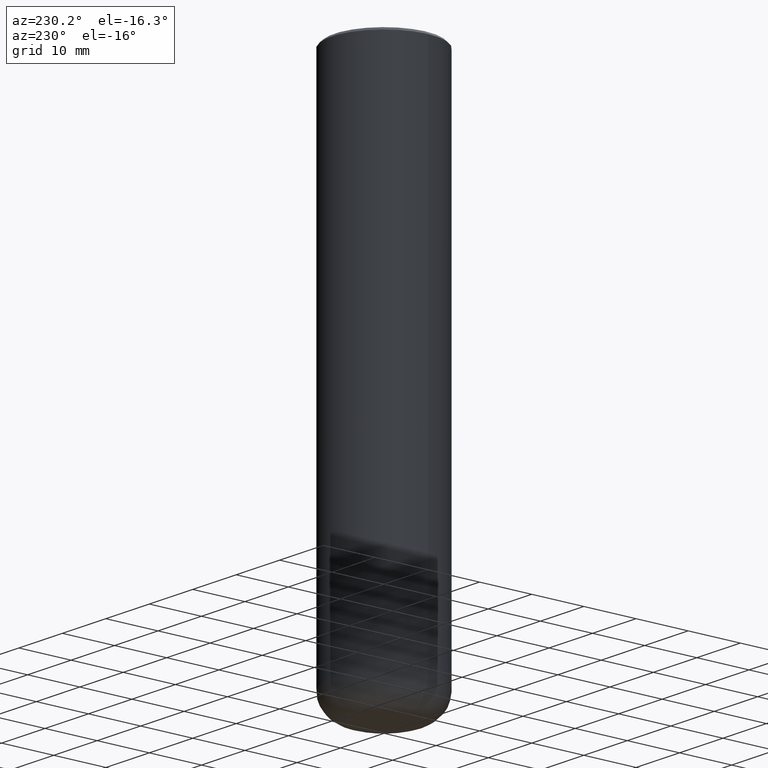
[diagram: clean part render]
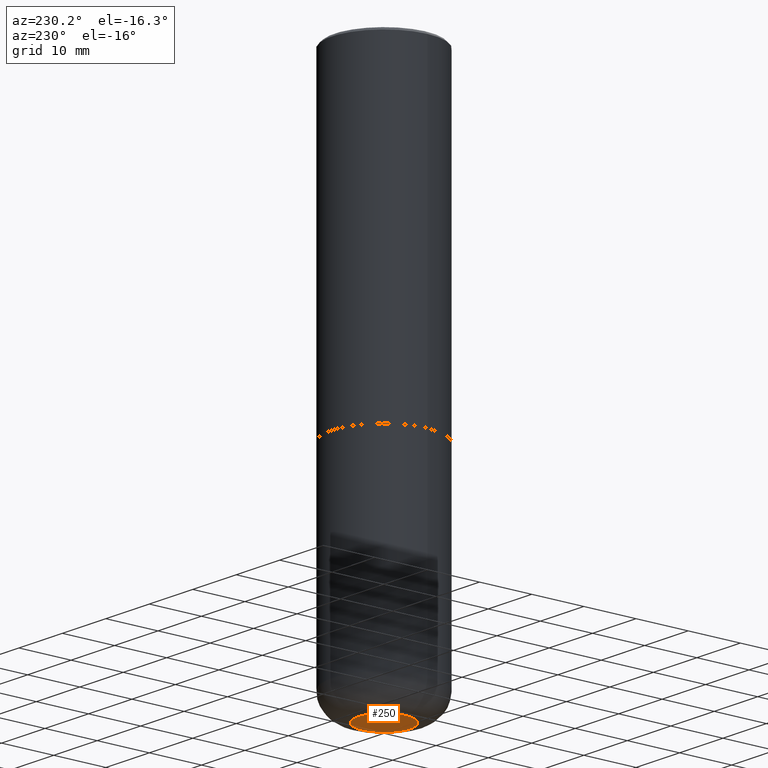
[diagram: same view with one face highlighted and labeled with its STEP entity id]
A machine part, auxiliary view. The second image highlights one B-rep face of the part: STEP entity #250.
In plain terms, the highlighted planar face has unit normal (0, -0, -1).
Its self-contained STEP definition (entity closure, byte-faithful):
#3 = EDGE_LOOP ( 'NONE', ( #75, #335 ) ) ;
#48 = DIRECTION ( 'NONE',  ( 2.438088387897960049E-29, -3.491481338843145188E-15, -1.000000000000000000 ) ) ;
#53 = CARTESIAN_POINT ( 'NONE',  ( 1.001297202692504215E-28, -1.429587034189326149E-14, -4.094500000000000028 ) ) ;
#75 = ORIENTED_EDGE ( 'NONE', *, *, #96, .F. ) ;
#96 = EDGE_CURVE ( 'NONE', #383, #280, #400, .T. ) ;
#139 = CARTESIAN_POINT ( 'NONE',  ( 1.001297202692504215E-28, -1.429587034189326149E-14, -4.094500000000000028 ) ) ;
#178 = DIRECTION ( 'NONE',  ( -1.000000000000000000, 6.982962677686265922E-15, -4.876176775795935793E-29 ) ) ;
#187 = AXIS2_PLACEMENT_3D ( 'NONE', #139, #258, #230 ) ;
#204 = FACE_OUTER_BOUND ( 'NONE', #3, .T. ) ;
#218 = CARTESIAN_POINT ( 'NONE',  ( 1.001297202692504215E-28, -1.429587034189326149E-14, -4.094500000000000028 ) ) ;
#222 = DIRECTION ( 'NONE',  ( -2.445468806185136597E-29, 3.491481338843145583E-15, 1.000000000000000000 ) ) ;
#230 = DIRECTION ( 'NONE',  ( 1.000000000000000000, -6.982962677686269866E-15, 0.000000000000000000 ) ) ;
#250 = ADVANCED_FACE ( 'NONE', ( #204 ), #326, .T. ) ;
#258 = DIRECTION ( 'NONE',  ( -2.445468806185136597E-29, 3.491481338843145583E-15, 1.000000000000000000 ) ) ;
#276 = DIRECTION ( 'NONE',  ( 1.000000000000000000, -6.982962677686269866E-15, 0.000000000000000000 ) ) ;
#280 = VERTEX_POINT ( 'NONE', #396 ) ;
#295 = CIRCLE ( 'NONE', #187, 0.1968000000000000582 ) ;
#315 = AXIS2_PLACEMENT_3D ( 'NONE', #53, #48, #178 ) ;
#326 = PLANE ( 'NONE',  #315 ) ;
#335 = ORIENTED_EDGE ( 'NONE', *, *, #392, .F. ) ;
#376 = AXIS2_PLACEMENT_3D ( 'NONE', #218, #222, #276 ) ;
#383 = VERTEX_POINT ( 'NONE', #398 ) ;
#392 = EDGE_CURVE ( 'NONE', #280, #383, #295, .T. ) ;
#396 = CARTESIAN_POINT ( 'NONE',  ( -0.1968000000000000582, -1.185425657675245696E-14, -4.094500000000000028 ) ) ;
#398 = CARTESIAN_POINT ( 'NONE',  ( 0.1968000000000000582, -1.567011739686191959E-14, -4.094500000000000028 ) ) ;
#400 = CIRCLE ( 'NONE', #376, 0.1968000000000000582 ) ;